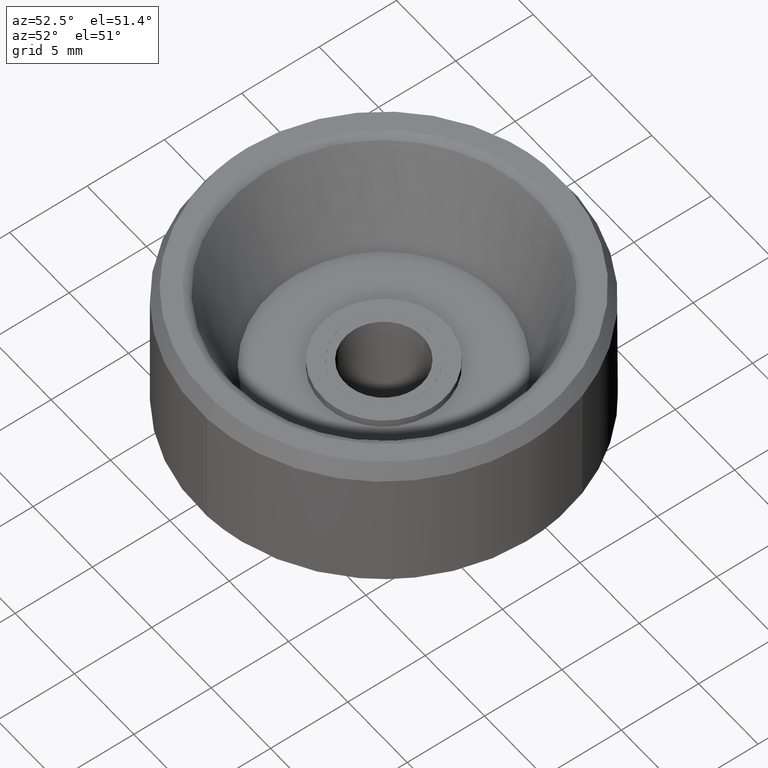
[diagram: clean part render]
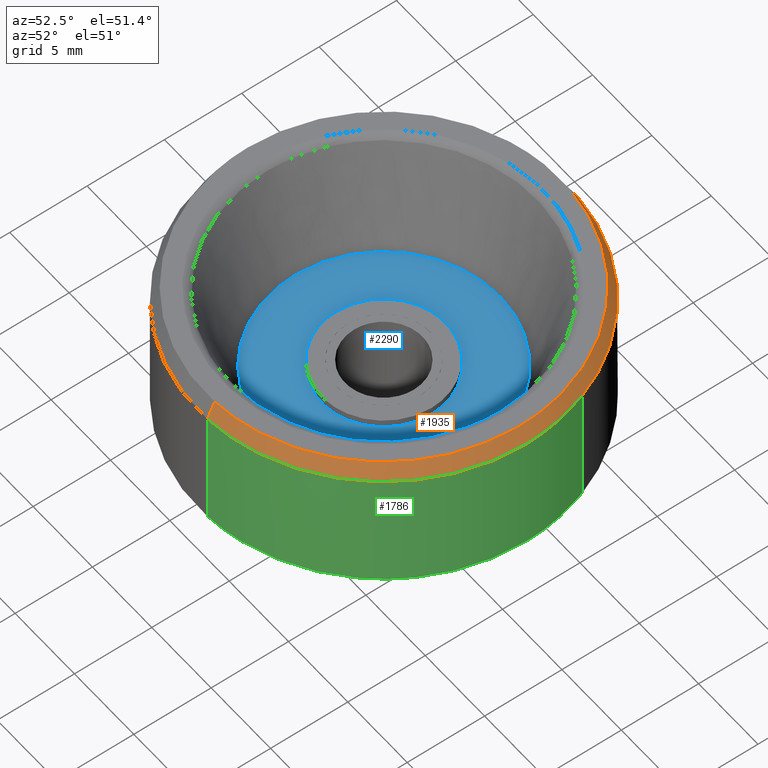
[diagram: same view with three faces highlighted in distinct colors, each labeled with its STEP entity id]
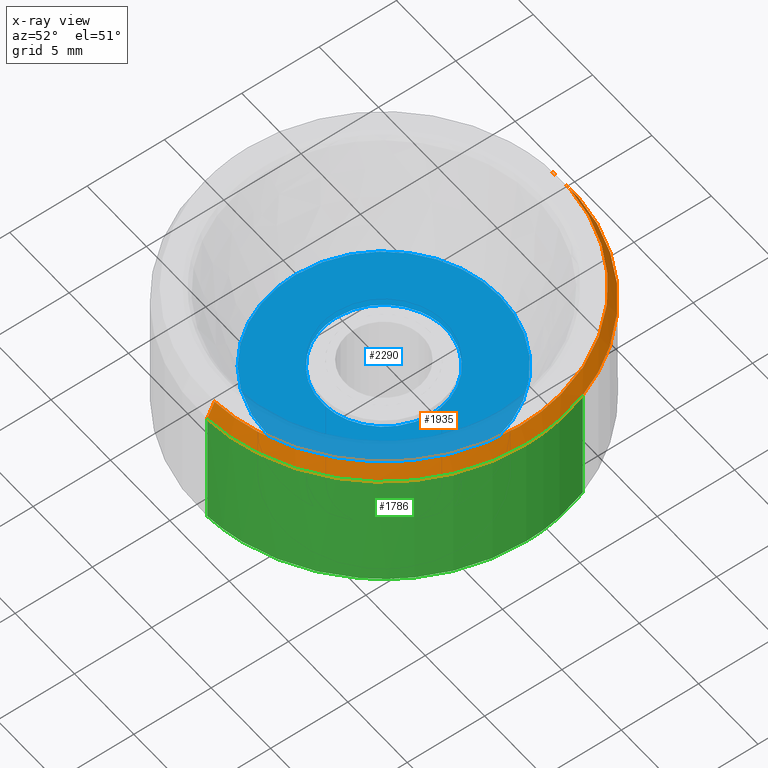
[diagram: x-ray of the same camera — body ghosted, the three highlighted faces saturated]
A machine part, auxiliary view with three faces highlighted in distinct colors.
The next image is the same camera in x-ray (body ghosted, the three faces saturated) — at least one of them is partly hidden behind the body in this view.
Their STEP definitions:

[orange] entity #1935 — the highlighted face is a freeform B-spline surface patch.
#1739=CARTESIAN_POINT('',(11.233725171087510,4.219409766831708,14.999999999999980));
#1740=VERTEX_POINT('',#1739);
#1741=CARTESIAN_POINT('',(12.0,0.0,15.0));
#1742=VERTEX_POINT('',#1741);
#1743=CARTESIAN_POINT('',(11.233725171087515,4.219409766831708,14.999999999999980));
#1744=CARTESIAN_POINT('',(12.000000000000004,2.179285363373097,15.0));
#1745=CARTESIAN_POINT('',(12.0,0.0,15.0));
#1753=(BOUNDED_CURVE()B_SPLINE_CURVE(2,(#1743,#1744,#1745),.UNSPECIFIED.,.F.,.U.)B_SPLINE_CURVE_WITH_KNOTS((3,3),(0.440284254218570,0.500000000000000),.UNSPECIFIED.)CURVE()GEOMETRIC_REPRESENTATION_ITEM()RATIONAL_B_SPLINE_CURVE((0.893499656599317,0.930038652016925,1.0))REPRESENTATION_ITEM(''));
#1754=EDGE_CURVE('',#1740,#1742,#1753,.T.);
#1756=CARTESIAN_POINT('',(0.732582474423547,-11.977617581062560,14.999999999998170));
#1757=VERTEX_POINT('',#1756);
#1758=CARTESIAN_POINT('',(12.0,0.0,15.0));
#1759=CARTESIAN_POINT('',(12.0,-11.288472802848613,14.999999999999995));
#1760=CARTESIAN_POINT('',(0.732582474423547,-11.977617581062557,14.999999999998174));
#1768=(BOUNDED_CURVE()B_SPLINE_CURVE(2,(#1758,#1759,#1760),.UNSPECIFIED.,.F.,.U.)B_SPLINE_CURVE_WITH_KNOTS((3,3),(0.500000000000000,0.739332962241667),.UNSPECIFIED.)CURVE()GEOMETRIC_REPRESENTATION_ITEM()RATIONAL_B_SPLINE_CURVE((1.0,0.719603993283518,0.976072041672557))REPRESENTATION_ITEM(''));
#1769=EDGE_CURVE('',#1742,#1757,#1768,.T.);
#1809=CARTESIAN_POINT('',(-1.416410815896937,11.916114316363560,14.999999999997121));
#1810=VERTEX_POINT('',#1809);
#1811=CARTESIAN_POINT('',(-1.416410815896937,11.916114316363556,14.999999999997122));
#1812=CARTESIAN_POINT('',(-0.710689435838751,11.999999999999998,14.999999999999998));
#1813=CARTESIAN_POINT('',(0.0,12.0,15.0));
#1814=CARTESIAN_POINT('',(8.311319831670838,12.000000000000002,14.999999999999996));
#1815=CARTESIAN_POINT('',(11.233725171087515,4.219409766831708,14.999999999999980));
#1823=(BOUNDED_CURVE()B_SPLINE_CURVE(2,(#1811,#1812,#1813,#1814,#1815),.UNSPECIFIED.,.F.,.U.)B_SPLINE_CURVE_WITH_KNOTS((3,2,3),(0.229562473515200,0.250000000000000,0.440284254218570),.UNSPECIFIED.)CURVE()GEOMETRIC_REPRESENTATION_ITEM()RATIONAL_B_SPLINE_CURVE((0.956026754187015,0.976055948333127,1.0,0.777068129169623,0.893499656599317))REPRESENTATION_ITEM(''));
#1824=EDGE_CURVE('',#1810,#1740,#1823,.T.);
#1864=CARTESIAN_POINT('',(-1.355918270619513,11.407196934102613,16.025000000000002));
#1865=CARTESIAN_POINT('',(-1.029449195228768,11.446002732465860,16.025000000000002));
#1866=CARTESIAN_POINT('',(-0.701295097906670,11.466073496871189,16.024999999999999));
#1867=CARTESIAN_POINT('',(10.764778398964523,12.167368594777862,16.024999999999995));
#1868=CARTESIAN_POINT('',(11.466073496871189,0.701295097906670,16.024999999999999));
#1869=CARTESIAN_POINT('',(12.167368594777862,-10.764778398964523,16.024999999999995));
#1870=CARTESIAN_POINT('',(0.701295097906670,-11.466073496871189,16.024999999999999));
#1871=CARTESIAN_POINT('',(-1.417923129512642,11.928837250920528,14.974375000000004));
#1872=CARTESIAN_POINT('',(-1.076524932366406,11.969417601706205,14.974374999999998));
#1873=CARTESIAN_POINT('',(-0.733364658831074,11.990406183167179,14.974375000000000));
#1874=CARTESIAN_POINT('',(11.257041524336104,12.723770841998254,14.974375000000004));
#1875=CARTESIAN_POINT('',(11.990406183167179,0.733364658831074,14.974375000000000));
#1876=CARTESIAN_POINT('',(12.723770841998254,-11.257041524336104,14.974375000000004));
#1877=CARTESIAN_POINT('',(0.733364658831074,-11.990406183167179,14.974375000000000));
#1885=(BOUNDED_SURFACE()B_SPLINE_SURFACE(2,1,((#1864,#1871),(#1865,#1872),(#1866,#1873),(#1867,#1874),(#1868,#1875),(#1869,#1876),(#1870,#1877)),.UNSPECIFIED.,.F.,.F.,.U.)B_SPLINE_SURFACE_WITH_KNOTS((3,2,2,3),(2,2),(0.0,0.796139177559208,20.699618616539379,40.603098055519560),(0.0,1.0),.UNSPECIFIED.)GEOMETRIC_REPRESENTATION_ITEM()RATIONAL_B_SPLINE_SURFACE(((0.977505800795127,0.977505800795127),(0.988284271247462,0.988284271247462),(1.0,1.0),(0.707106781186548,0.707106781186548),(1.0,1.0),(0.707106781186548,0.707106781186548),(1.0,1.0)))REPRESENTATION_ITEM('')SURFACE());
#1886=ORIENTED_EDGE('',*,*,#1824,.F.);
#1887=CARTESIAN_POINT('',(-1.357393698560204,11.419609553181960,15.999999999998639));
#1888=VERTEX_POINT('',#1887);
#1889=CARTESIAN_POINT('',(-1.357393698560204,11.419609553181960,15.999999999998639));
#1890=CARTESIAN_POINT('',(-1.416410815896937,11.916114316363560,14.999999999997121));
#1891=QUASI_UNIFORM_CURVE('',1,(#1889,#1890),.UNSPECIFIED.,.F.,.U.);
#1892=EDGE_CURVE('',#1888,#1810,#1891,.T.);
#1893=ORIENTED_EDGE('',*,*,#1892,.F.);
#1894=CARTESIAN_POINT('',(11.500000000000000,0.0,16.0));
#1895=VERTEX_POINT('',#1894);
#1896=CARTESIAN_POINT('',(-1.357393698560204,11.419609553181962,15.999999999998648));
#1897=CARTESIAN_POINT('',(-0.681077376004445,11.499999999999996,15.999999999999996));
#1898=CARTESIAN_POINT('',(0.0,11.500000000000000,16.0));
#1899=CARTESIAN_POINT('',(11.500000000000000,11.500000000000000,15.999999999999998));
#1900=CARTESIAN_POINT('',(11.500000000000000,0.0,16.0));
#1908=(BOUNDED_CURVE()B_SPLINE_CURVE(2,(#1896,#1897,#1898,#1899,#1900),.UNSPECIFIED.,.F.,.U.)B_SPLINE_CURVE_WITH_KNOTS((3,2,3),(0.229562473515425,0.250000000000000,0.500000000000000),.UNSPECIFIED.)CURVE()GEOMETRIC_REPRESENTATION_ITEM()RATIONAL_B_SPLINE_CURVE((0.956026754187456,0.976055948333391,1.0,0.707106781186548,1.0))REPRESENTATION_ITEM(''));
#1909=EDGE_CURVE('',#1888,#1895,#1908,.T.);
#1910=ORIENTED_EDGE('',*,*,#1909,.T.);
#1911=CARTESIAN_POINT('',(0.702058204650977,-11.478550181851469,15.999999999999980));
#1912=VERTEX_POINT('',#1911);
#1913=CARTESIAN_POINT('',(11.500000000000000,0.0,16.0));
#1914=CARTESIAN_POINT('',(11.499999999999998,-10.818119769415276,16.000000000000007));
#1915=CARTESIAN_POINT('',(0.702058204650977,-11.478550181851467,15.999999999999979));
#1923=(BOUNDED_CURVE()B_SPLINE_CURVE(2,(#1913,#1914,#1915),.UNSPECIFIED.,.F.,.U.)B_SPLINE_CURVE_WITH_KNOTS((3,3),(0.500000000000000,0.739332962241965),.UNSPECIFIED.)CURVE()GEOMETRIC_REPRESENTATION_ITEM()RATIONAL_B_SPLINE_CURVE((1.0,0.719603993283170,0.976072041673195))REPRESENTATION_ITEM(''));
#1924=EDGE_CURVE('',#1895,#1912,#1923,.T.);
#1925=ORIENTED_EDGE('',*,*,#1924,.T.);
#1926=CARTESIAN_POINT('',(0.702058204650977,-11.478550181851469,15.999999999999980));
#1927=CARTESIAN_POINT('',(0.732582474423547,-11.977617581062560,14.999999999998170));
#1928=QUASI_UNIFORM_CURVE('',1,(#1926,#1927),.UNSPECIFIED.,.F.,.U.);
#1929=EDGE_CURVE('',#1912,#1757,#1928,.T.);
#1930=ORIENTED_EDGE('',*,*,#1929,.T.);
#1931=ORIENTED_EDGE('',*,*,#1769,.F.);
#1932=ORIENTED_EDGE('',*,*,#1754,.F.);
#1933=EDGE_LOOP('',(#1886,#1893,#1910,#1925,#1930,#1931,#1932));
#1934=FACE_OUTER_BOUND('',#1933,.T.);
#1935=ADVANCED_FACE('',(#1934),#1885,.T.);

[blue] entity #2290 — the highlighted face is a freeform B-spline surface patch.
#592=CARTESIAN_POINT('',(0.065449016246883,-7.499714422981834,9.500000000001634));
#593=VERTEX_POINT('',#592);
#599=CARTESIAN_POINT('',(-7.500000000000000,0.0,9.500000000000000));
#600=VERTEX_POINT('',#599);
#601=CARTESIAN_POINT('',(0.065449016246883,-7.499714422981834,9.500000000001634));
#602=CARTESIAN_POINT('',(0.032725131164334,-7.499999999999999,9.499999999999998));
#603=CARTESIAN_POINT('',(0.0,-7.500000000000000,9.500000000000000));
#604=CARTESIAN_POINT('',(-7.500000000000000,-7.500000000000000,9.500000000000000));
#605=CARTESIAN_POINT('',(-7.500000000000000,0.0,9.500000000000000));
#613=(BOUNDED_CURVE()B_SPLINE_CURVE(2,(#601,#602,#603,#604,#605),.UNSPECIFIED.,.F.,.U.)B_SPLINE_CURVE_WITH_KNOTS((3,2,3),(0.748460105664587,0.750000000000000,1.0),.UNSPECIFIED.)CURVE()GEOMETRIC_REPRESENTATION_ITEM()RATIONAL_B_SPLINE_CURVE((0.996414028099420,0.998195901565873,1.0,0.707106781186547,1.0))REPRESENTATION_ITEM(''));
#614=EDGE_CURVE('',#593,#600,#613,.T.);
#616=CARTESIAN_POINT('',(7.500000000000000,0.0,9.500000000000000));
#617=VERTEX_POINT('',#616);
#618=CARTESIAN_POINT('',(-7.500000000000000,0.0,9.500000000000000));
#619=CARTESIAN_POINT('',(-7.500000000000000,7.500000000000000,9.500000000000000));
#620=CARTESIAN_POINT('',(0.0,7.500000000000000,9.500000000000000));
#621=CARTESIAN_POINT('',(7.500000000000000,7.500000000000000,9.500000000000000));
#622=CARTESIAN_POINT('',(7.500000000000000,0.0,9.500000000000000));
#630=(BOUNDED_CURVE()B_SPLINE_CURVE(2,(#618,#619,#620,#621,#622),.UNSPECIFIED.,.F.,.U.)B_SPLINE_CURVE_WITH_KNOTS((3,2,3),(0.0,0.250000000000000,0.500000000000000),.UNSPECIFIED.)CURVE()GEOMETRIC_REPRESENTATION_ITEM()RATIONAL_B_SPLINE_CURVE((1.0,0.707106781186547,1.0,0.707106781186547,1.0))REPRESENTATION_ITEM(''));
#631=EDGE_CURVE('',#600,#617,#630,.T.);
#633=CARTESIAN_POINT('',(5.172294320879644,-5.431148263322978,9.500000000000004));
#634=VERTEX_POINT('',#633);
#635=CARTESIAN_POINT('',(7.500000000000000,0.0,9.500000000000000));
#636=CARTESIAN_POINT('',(7.499999999999999,-3.214383358174162,9.499999999999998));
#637=CARTESIAN_POINT('',(5.172294320879644,-5.431148263322978,9.500000000000004));
#645=(BOUNDED_CURVE()B_SPLINE_CURVE(2,(#635,#636,#637),.UNSPECIFIED.,.F.,.U.)B_SPLINE_CURVE_WITH_KNOTS((3,3),(0.500000000000000,0.628682976150483),.UNSPECIFIED.)CURVE()GEOMETRIC_REPRESENTATION_ITEM()RATIONAL_B_SPLINE_CURVE((1.0,0.849238515635162,0.853680523245778))REPRESENTATION_ITEM(''));
#646=EDGE_CURVE('',#617,#634,#645,.T.);
#684=CARTESIAN_POINT('',(5.172294320879644,-5.431148263322978,9.500000000000004));
#685=CARTESIAN_POINT('',(3.027345860740078,-7.473866340802262,9.500000000000000));
#686=CARTESIAN_POINT('',(0.065449016246883,-7.499714422981834,9.500000000001634));
#694=(BOUNDED_CURVE()B_SPLINE_CURVE(2,(#684,#685,#686),.UNSPECIFIED.,.F.,.U.)B_SPLINE_CURVE_WITH_KNOTS((3,3),(0.628682976150483,0.748460105664586),.UNSPECIFIED.)CURVE()GEOMETRIC_REPRESENTATION_ITEM()RATIONAL_B_SPLINE_CURVE((0.853680523245778,0.857815109939338,0.996414028099417))REPRESENTATION_ITEM(''));
#695=EDGE_CURVE('',#634,#593,#694,.T.);
#723=CARTESIAN_POINT('',(-0.472136938647994,3.972038105452174,9.500000000000000));
#724=VERTEX_POINT('',#723);
#725=CARTESIAN_POINT('',(4.0,0.0,9.500000000000000));
#726=VERTEX_POINT('',#725);
#727=CARTESIAN_POINT('',(-0.472136938647993,3.972038105452174,9.500000000000000));
#728=CARTESIAN_POINT('',(-0.236896478628822,4.000000000000000,9.500000000000002));
#729=CARTESIAN_POINT('',(0.0,4.0,9.500000000000000));
#730=CARTESIAN_POINT('',(4.000000000000000,4.000000000000000,9.500000000000000));
#731=CARTESIAN_POINT('',(4.0,0.0,9.500000000000000));
#739=(BOUNDED_CURVE()B_SPLINE_CURVE(2,(#727,#728,#729,#730,#731),.UNSPECIFIED.,.F.,.U.)B_SPLINE_CURVE_WITH_KNOTS((3,2,3),(0.229562473513861,0.250000000000000,0.500000000000000),.UNSPECIFIED.)CURVE()GEOMETRIC_REPRESENTATION_ITEM()RATIONAL_B_SPLINE_CURVE((0.956026754184390,0.976055948331558,1.0,0.707106781186548,1.0))REPRESENTATION_ITEM(''));
#740=EDGE_CURVE('',#724,#726,#739,.T.);
#781=CARTESIAN_POINT('',(0.244191349900155,-3.992539365444757,9.499999999999822));
#782=VERTEX_POINT('',#781);
#788=CARTESIAN_POINT('',(4.0,0.0,9.500000000000000));
#789=CARTESIAN_POINT('',(4.0,-3.762826919233613,9.500000000000000));
#790=CARTESIAN_POINT('',(0.244191349900155,-3.992539365444757,9.499999999999822));
#798=(BOUNDED_CURVE()B_SPLINE_CURVE(2,(#788,#789,#790),.UNSPECIFIED.,.F.,.U.)B_SPLINE_CURVE_WITH_KNOTS((3,3),(0.500000000000000,0.739333083606517),.UNSPECIFIED.)CURVE()GEOMETRIC_REPRESENTATION_ITEM()RATIONAL_B_SPLINE_CURVE((1.0,0.719603851095753,0.976072301780669))REPRESENTATION_ITEM(''));
#799=EDGE_CURVE('',#726,#782,#798,.T.);
#822=CARTESIAN_POINT('',(-4.0,0.0,9.500000000000000));
#823=VERTEX_POINT('',#822);
#824=CARTESIAN_POINT('',(-4.0,0.0,9.500000000000000));
#825=CARTESIAN_POINT('',(-4.0,3.552698103767714,9.500000000000000));
#826=CARTESIAN_POINT('',(-0.472136938647993,3.972038105452174,9.500000000000000));
#834=(BOUNDED_CURVE()B_SPLINE_CURVE(2,(#824,#825,#826),.UNSPECIFIED.,.F.,.U.)B_SPLINE_CURVE_WITH_KNOTS((3,3),(0.0,0.229562473513861),.UNSPECIFIED.)CURVE()GEOMETRIC_REPRESENTATION_ITEM()RATIONAL_B_SPLINE_CURVE((1.0,0.731050832854990,0.956026754184390))REPRESENTATION_ITEM(''));
#835=EDGE_CURVE('',#823,#724,#834,.T.);
#837=CARTESIAN_POINT('',(0.244191349900155,-3.992539365444757,9.499999999999822));
#838=CARTESIAN_POINT('',(0.122209645137780,-4.000000000000000,9.500000000000000));
#839=CARTESIAN_POINT('',(0.0,-4.0,9.500000000000000));
#840=CARTESIAN_POINT('',(-4.000000000000000,-4.000000000000000,9.500000000000000));
#841=CARTESIAN_POINT('',(-4.0,0.0,9.500000000000000));
#849=(BOUNDED_CURVE()B_SPLINE_CURVE(2,(#837,#838,#839,#840,#841),.UNSPECIFIED.,.F.,.U.)B_SPLINE_CURVE_WITH_KNOTS((3,2,3),(0.739333083606517,0.750000000000000,1.0),.UNSPECIFIED.)CURVE()GEOMETRIC_REPRESENTATION_ITEM()RATIONAL_B_SPLINE_CURVE((0.976072301780669,0.987502930090795,1.0,0.707106781186548,1.0))REPRESENTATION_ITEM(''));
#850=EDGE_CURVE('',#782,#823,#849,.T.);
#2273=CARTESIAN_POINT('',(8.249249970927089,-8.248950187996019,9.500000000000000));
#2274=CARTESIAN_POINT('',(-8.249250373258443,-8.248950187996019,9.500000000000000));
#2275=CARTESIAN_POINT('',(8.249249970927089,8.249236111477009,9.500000000000000));
#2276=CARTESIAN_POINT('',(-8.249250373258443,8.249236111477009,9.500000000000000));
#2277=B_SPLINE_SURFACE_WITH_KNOTS('',1,1,((#2273,#2275),(#2274,#2276)),.UNSPECIFIED.,.F.,.F.,.U.,(2,2),(2,2),(0.0,16.498500344185530),(0.0,16.498186299473030),.UNSPECIFIED.);
#2278=ORIENTED_EDGE('',*,*,#614,.F.);
#2279=ORIENTED_EDGE('',*,*,#695,.F.);
#2280=ORIENTED_EDGE('',*,*,#646,.F.);
#2281=ORIENTED_EDGE('',*,*,#631,.F.);
#2282=EDGE_LOOP('',(#2278,#2279,#2280,#2281));
#2283=FACE_OUTER_BOUND('',#2282,.T.);
#2284=ORIENTED_EDGE('',*,*,#799,.T.);
#2285=ORIENTED_EDGE('',*,*,#850,.T.);
#2286=ORIENTED_EDGE('',*,*,#835,.T.);
#2287=ORIENTED_EDGE('',*,*,#740,.T.);
#2288=EDGE_LOOP('',(#2284,#2285,#2286,#2287));
#2289=FACE_BOUND('',#2288,.T.);
#2290=ADVANCED_FACE('',(#2283,#2289),#2277,.F.);

[green] entity #1786 — the highlighted face is a freeform B-spline surface patch.
#1591=CARTESIAN_POINT('',(8.704492452146841,-8.260254908325699,7.000000000000102));
#1592=VERTEX_POINT('',#1591);
#1598=CARTESIAN_POINT('',(0.732574907563961,-11.977618043866240,7.000000000000100));
#1599=VERTEX_POINT('',#1598);
#1600=CARTESIAN_POINT('',(8.704492452146841,-8.260254908325699,7.000000000000102));
#1601=CARTESIAN_POINT('',(5.450688498442415,-11.689048846299009,7.000000000000100));
#1602=CARTESIAN_POINT('',(0.732574907563961,-11.977618043866238,7.000000000000100));
#1610=(BOUNDED_CURVE()B_SPLINE_CURVE(2,(#1600,#1601,#1602),.UNSPECIFIED.,.F.,.U.)B_SPLINE_CURVE_WITH_KNOTS((3,3),(0.621049526659098,0.739333071248331),.UNSPECIFIED.)CURVE()GEOMETRIC_REPRESENTATION_ITEM()RATIONAL_B_SPLINE_CURVE((0.853699661369435,0.849320078372361,0.976072275294699))REPRESENTATION_ITEM(''));
#1611=EDGE_CURVE('',#1592,#1599,#1610,.T.);
#1645=CARTESIAN_POINT('',(11.233724961742750,4.219410324190458,7.000000000000100));
#1646=VERTEX_POINT('',#1645);
#1660=CARTESIAN_POINT('',(12.0,0.0,7.000000000000100));
#1661=VERTEX_POINT('',#1660);
#1662=CARTESIAN_POINT('',(11.233724961742745,4.219410324190458,7.000000000000100));
#1663=CARTESIAN_POINT('',(11.999999999999998,2.179285670879810,7.000000000000100));
#1664=CARTESIAN_POINT('',(12.0,0.0,7.000000000000100));
#1672=(BOUNDED_CURVE()B_SPLINE_CURVE(2,(#1662,#1663,#1664),.UNSPECIFIED.,.F.,.U.)B_SPLINE_CURVE_WITH_KNOTS((3,3),(0.440284246381922,0.500000000000000),.UNSPECIFIED.)CURVE()GEOMETRIC_REPRESENTATION_ITEM()RATIONAL_B_SPLINE_CURVE((0.893499647009108,0.930038642835720,1.0))REPRESENTATION_ITEM(''));
#1673=EDGE_CURVE('',#1646,#1661,#1672,.T.);
#1675=CARTESIAN_POINT('',(12.0,0.0,7.000000000000100));
#1676=CARTESIAN_POINT('',(12.0,-4.787514551685697,7.000000000000101));
#1677=CARTESIAN_POINT('',(8.704492452146841,-8.260254908325699,7.000000000000102));
#1685=(BOUNDED_CURVE()B_SPLINE_CURVE(2,(#1675,#1676,#1677),.UNSPECIFIED.,.F.,.U.)B_SPLINE_CURVE_WITH_KNOTS((3,3),(0.500000000000000,0.621049526659098),.UNSPECIFIED.)CURVE()GEOMETRIC_REPRESENTATION_ITEM()RATIONAL_B_SPLINE_CURVE((1.0,0.858181658003887,0.853699661369435))REPRESENTATION_ITEM(''));
#1686=EDGE_CURVE('',#1661,#1592,#1685,.T.);
#1721=CARTESIAN_POINT('',(11.233722945319890,4.219415692698866,15.200000000000003));
#1722=CARTESIAN_POINT('',(11.867568232381807,2.531873420584900,15.199999999999996));
#1723=CARTESIAN_POINT('',(11.977617581062400,0.732582474418284,15.199999999999999));
#1724=CARTESIAN_POINT('',(12.710200055480684,-11.245035106644117,15.199999999999996));
#1725=CARTESIAN_POINT('',(0.732582474418284,-11.977617581062400,15.199999999999999));
#1726=CARTESIAN_POINT('',(11.233722945319890,4.219415692698866,6.795000000000102));
#1727=CARTESIAN_POINT('',(11.867568232381807,2.531873420584900,6.795000000000102));
#1728=CARTESIAN_POINT('',(11.977617581062400,0.732582474418284,6.795000000000101));
#1729=CARTESIAN_POINT('',(12.710200055480684,-11.245035106644117,6.795000000000101));
#1730=CARTESIAN_POINT('',(0.732582474418284,-11.977617581062400,6.795000000000101));
#1738=(BOUNDED_SURFACE()B_SPLINE_SURFACE(2,1,((#1721,#1726),(#1722,#1727),(#1723,#1728),(#1724,#1729),(#1725,#1730)),.UNSPECIFIED.,.F.,.F.,.U.)B_SPLINE_SURFACE_WITH_KNOTS((3,2,3),(2,2),(0.0,3.976450198781711,23.858701192690269),(0.0,8.404999999999898),.UNSPECIFIED.)GEOMETRIC_REPRESENTATION_ITEM()RATIONAL_B_SPLINE_SURFACE(((0.906274169979695,0.906274169979695),(0.941421356237309,0.941421356237309),(1.0,1.0),(0.707106781186548,0.707106781186548),(1.0,1.0)))REPRESENTATION_ITEM('')SURFACE());
#1739=CARTESIAN_POINT('',(11.233725171087510,4.219409766831708,14.999999999999980));
#1740=VERTEX_POINT('',#1739);
#1741=CARTESIAN_POINT('',(12.0,0.0,15.0));
#1742=VERTEX_POINT('',#1741);
#1743=CARTESIAN_POINT('',(11.233725171087515,4.219409766831708,14.999999999999980));
#1744=CARTESIAN_POINT('',(12.000000000000004,2.179285363373097,15.0));
#1745=CARTESIAN_POINT('',(12.0,0.0,15.0));
#1753=(BOUNDED_CURVE()B_SPLINE_CURVE(2,(#1743,#1744,#1745),.UNSPECIFIED.,.F.,.U.)B_SPLINE_CURVE_WITH_KNOTS((3,3),(0.440284254218570,0.500000000000000),.UNSPECIFIED.)CURVE()GEOMETRIC_REPRESENTATION_ITEM()RATIONAL_B_SPLINE_CURVE((0.893499656599317,0.930038652016925,1.0))REPRESENTATION_ITEM(''));
#1754=EDGE_CURVE('',#1740,#1742,#1753,.T.);
#1755=ORIENTED_EDGE('',*,*,#1754,.T.);
#1756=CARTESIAN_POINT('',(0.732582474423547,-11.977617581062560,14.999999999998170));
#1757=VERTEX_POINT('',#1756);
#1758=CARTESIAN_POINT('',(12.0,0.0,15.0));
#1759=CARTESIAN_POINT('',(12.0,-11.288472802848613,14.999999999999995));
#1760=CARTESIAN_POINT('',(0.732582474423547,-11.977617581062557,14.999999999998174));
#1768=(BOUNDED_CURVE()B_SPLINE_CURVE(2,(#1758,#1759,#1760),.UNSPECIFIED.,.F.,.U.)B_SPLINE_CURVE_WITH_KNOTS((3,3),(0.500000000000000,0.739332962241667),.UNSPECIFIED.)CURVE()GEOMETRIC_REPRESENTATION_ITEM()RATIONAL_B_SPLINE_CURVE((1.0,0.719603993283518,0.976072041672557))REPRESENTATION_ITEM(''));
#1769=EDGE_CURVE('',#1742,#1757,#1768,.T.);
#1770=ORIENTED_EDGE('',*,*,#1769,.T.);
#1771=CARTESIAN_POINT('',(0.732582474423547,-11.977617581062560,14.999999999998170));
#1772=CARTESIAN_POINT('',(0.732574907563961,-11.977618043866240,7.000000000000100));
#1773=QUASI_UNIFORM_CURVE('',1,(#1771,#1772),.UNSPECIFIED.,.F.,.U.);
#1774=EDGE_CURVE('',#1757,#1599,#1773,.T.);
#1775=ORIENTED_EDGE('',*,*,#1774,.T.);
#1776=ORIENTED_EDGE('',*,*,#1611,.F.);
#1777=ORIENTED_EDGE('',*,*,#1686,.F.);
#1778=ORIENTED_EDGE('',*,*,#1673,.F.);
#1779=CARTESIAN_POINT('',(11.233725171087510,4.219409766831708,14.999999999999980));
#1780=CARTESIAN_POINT('',(11.233724961742750,4.219410324190458,7.000000000000100));
#1781=QUASI_UNIFORM_CURVE('',1,(#1779,#1780),.UNSPECIFIED.,.F.,.U.);
#1782=EDGE_CURVE('',#1740,#1646,#1781,.T.);
#1783=ORIENTED_EDGE('',*,*,#1782,.F.);
#1784=EDGE_LOOP('',(#1755,#1770,#1775,#1776,#1777,#1778,#1783));
#1785=FACE_OUTER_BOUND('',#1784,.T.);
#1786=ADVANCED_FACE('',(#1785),#1738,.T.);